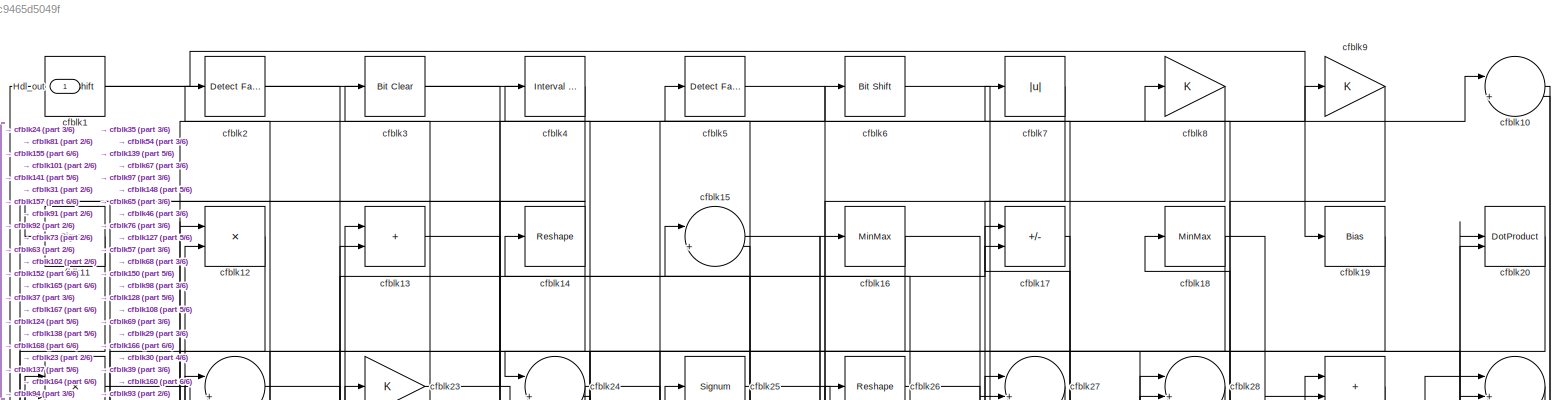
[diagram: root canvas - part 1/6, full width, top band]
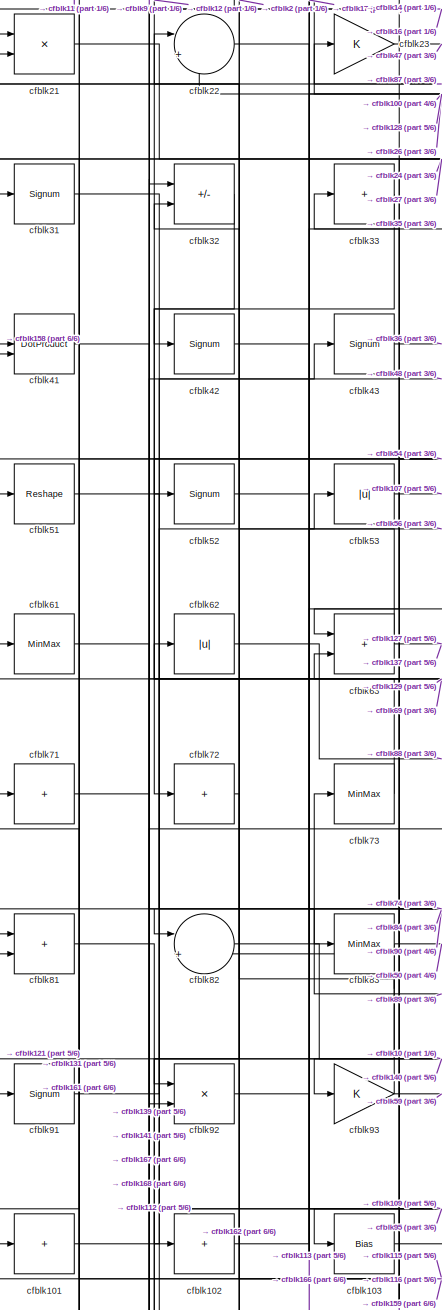
[diagram: root canvas - part 2/6, middle left region]
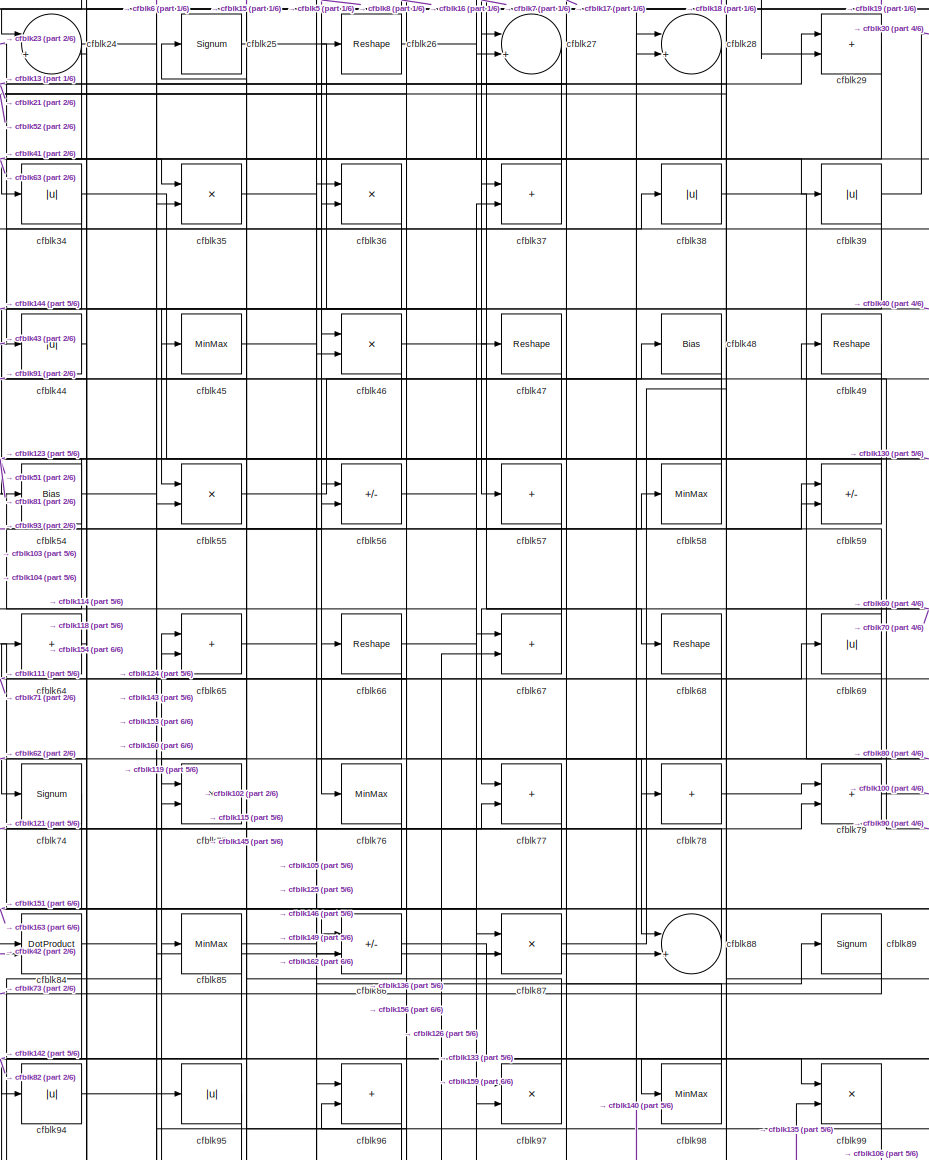
[diagram: root canvas - part 3/6, central region]
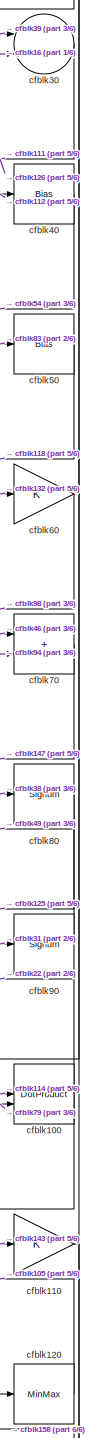
[diagram: root canvas - part 4/6, middle right region]
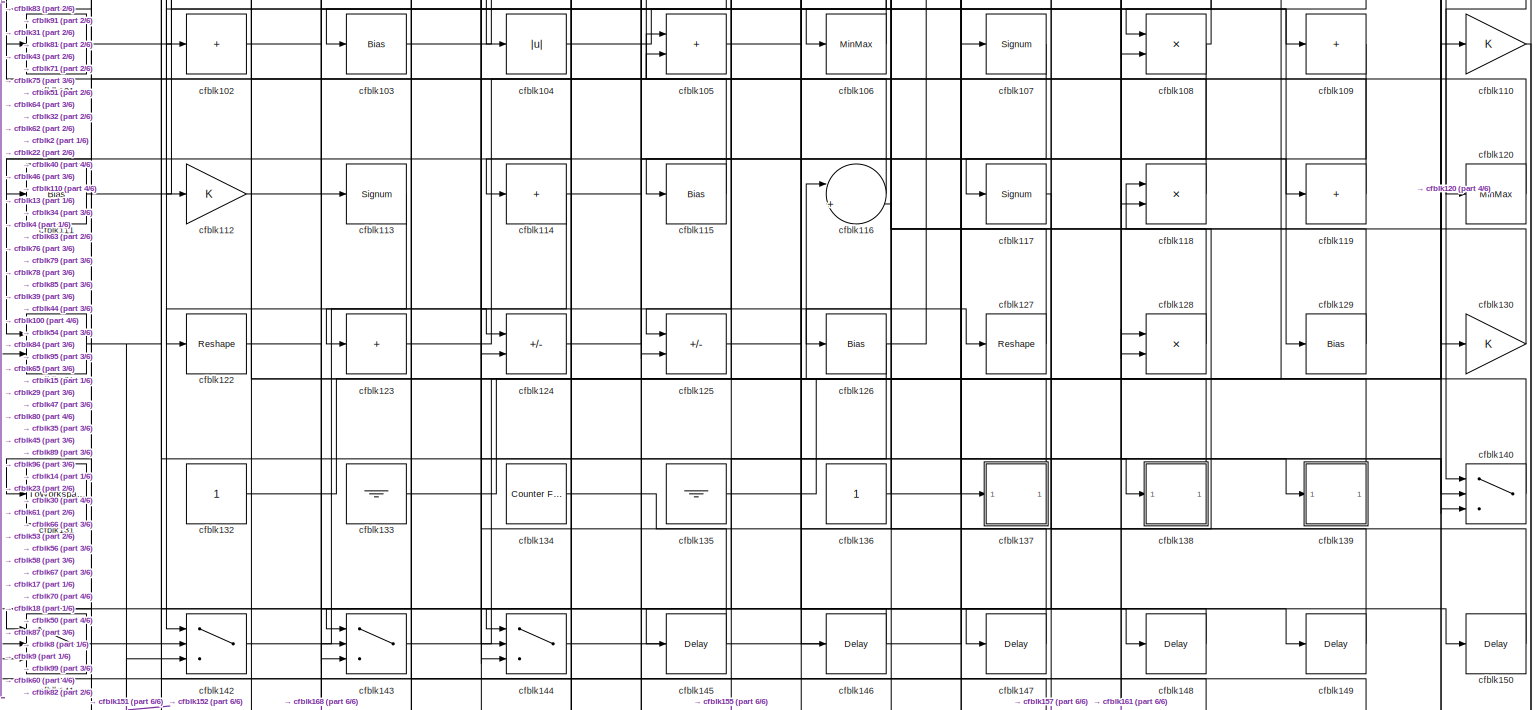
[diagram: root canvas - part 5/6, full width, bottom band]
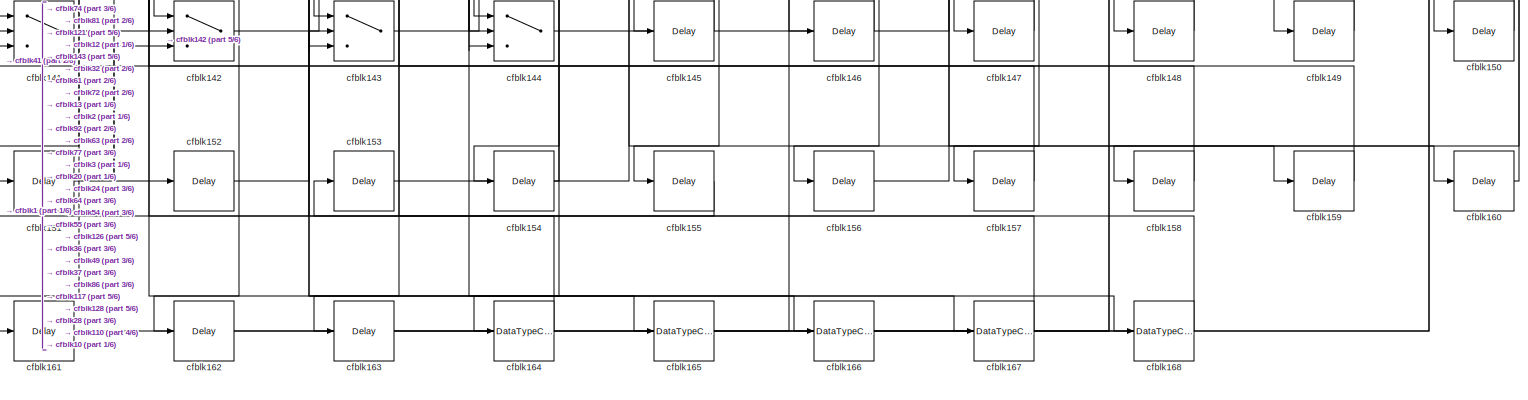
[diagram: root canvas - part 6/6, full width, bottom band]
MODEL slx_3c9465d5049f
KIND model
CONFIG AbsTol = auto
CONFIG EnableMultiTasking = off
CONFIG FixedStep = auto
CONFIG MaxStep = auto
CONFIG MinStep = auto
CONFIG RelTol = 1e-3
CONFIG SampleTimeConstraint = Unconstrained
CONFIG SolverName = VariableStepAuto
CONFIG StartTime = 0.0
CONFIG StopTime = 10.0
BLOCK [Outport] Hdl_out
  OutDataTypeStr = uint8
BLOCK [ArithShift] cfblk1
  BitShiftNumber = 8
  InputPortMap = u0
BLOCK [Sum] cfblk10
  Inputs = |++
  OutDataTypeStr = uint8
BLOCK [DotProduct] cfblk100
  OutDataTypeStr = uint8
BLOCK [Sum] cfblk101
  IconShape = rectangular
  Inputs = +
  OutDataTypeStr = uint8
BLOCK [Sum] cfblk102
  IconShape = rectangular
  Inputs = +
  OutDataTypeStr = uint8
BLOCK [Bias] cfblk103
  Bias = 0.0
  SaturateOnIntegerOverflow = off
BLOCK [Abs] cfblk104
  OutDataTypeStr = uint8
  SaturateOnIntegerOverflow = off
BLOCK [Sum] cfblk105
  IconShape = rectangular
  OutDataTypeStr = uint8
BLOCK [MinMax] cfblk106
  OutDataTypeStr = uint8
BLOCK [Signum] cfblk107
BLOCK [Product] cfblk108
  Inputs = */
  OutDataTypeStr = uint8
  RndMeth = Zero
  SaturateOnIntegerOverflow = on
BLOCK [Sum] cfblk109
  IconShape = rectangular
  Inputs = +
  OutDataTypeStr = uint8
BLOCK [Signum] cfblk11
BLOCK [Gain] cfblk110
  OutDataTypeStr = uint8
BLOCK [Bias] cfblk111
  Bias = 0.0
  SaturateOnIntegerOverflow = off
BLOCK [Gain] cfblk112
  OutDataTypeStr = uint8
BLOCK [Signum] cfblk113
BLOCK [Sum] cfblk114
  IconShape = rectangular
  Inputs = +
  OutDataTypeStr = uint8
BLOCK [Bias] cfblk115
  Bias = 0.0
  SaturateOnIntegerOverflow = off
BLOCK [Sum] cfblk116
  Inputs = |++
  OutDataTypeStr = uint8
BLOCK [Signum] cfblk117
BLOCK [Product] cfblk118
  Inputs = */
  OutDataTypeStr = uint8
  RndMeth = Zero
  SaturateOnIntegerOverflow = on
BLOCK [Sum] cfblk119
  IconShape = rectangular
  Inputs = +
  OutDataTypeStr = uint8
BLOCK [Product] cfblk12
  Inputs = */
  OutDataTypeStr = uint8
  RndMeth = Zero
  SaturateOnIntegerOverflow = on
BLOCK [MinMax] cfblk120
  OutDataTypeStr = uint8
BLOCK [Sum] cfblk121
  IconShape = rectangular
  OutDataTypeStr = uint8
BLOCK [Reshape] cfblk122
BLOCK [Sum] cfblk123
  IconShape = rectangular
  Inputs = +
  OutDataTypeStr = uint8
BLOCK [Sum] cfblk124
  IconShape = rectangular
  Inputs = +-
  OutDataTypeStr = uint8
BLOCK [Sum] cfblk125
  IconShape = rectangular
  Inputs = +-
  OutDataTypeStr = uint8
BLOCK [Bias] cfblk126
  Bias = 0.0
  SaturateOnIntegerOverflow = off
BLOCK [Reshape] cfblk127
BLOCK [Product] cfblk128
  Inputs = */
  OutDataTypeStr = uint8
  RndMeth = Zero
  SaturateOnIntegerOverflow = on
BLOCK [Bias] cfblk129
  Bias = 0.0
  SaturateOnIntegerOverflow = off
BLOCK [Sum] cfblk13
  IconShape = rectangular
  OutDataTypeStr = uint8
BLOCK [Gain] cfblk130
  OutDataTypeStr = uint8
BLOCK [ToWorkspace] cfblk131
  MaxDataPoints = inf
  SampleTime = -1
  SaveFormat = Timeseries
  VariableName = simout
BLOCK [Constant] cfblk132
  OutDataTypeStr = uint8
  SampleTime = -1
BLOCK [Ground] cfblk133
BLOCK [Reference] cfblk134  REF=hdlsllib/Sources/Counter
Free-Running
  SourceBlock = hdlsllib/Sources/Counter\nFree-Running
  SourceType = Counter Free-Running
BLOCK [Ground] cfblk135
BLOCK [Constant] cfblk136
  OutDataTypeStr = uint8
  SampleTime = -1
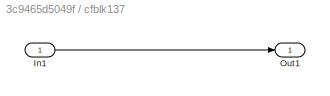
BLOCK [SubSystem] cfblk137
  LibrarySourceBlock = hdlsllib/Ports &\nSubsystems/Subsystem
BLOCK [Inport] cfblk137/In1
BLOCK [Outport] cfblk137/Out1
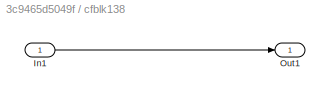
BLOCK [SubSystem] cfblk138
  LibrarySourceBlock = hdlsllib/Ports &\nSubsystems/Subsystem
BLOCK [Inport] cfblk138/In1
BLOCK [Outport] cfblk138/Out1
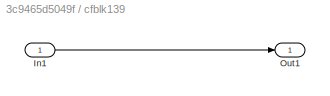
BLOCK [SubSystem] cfblk139
  LibrarySourceBlock = hdlsllib/Ports &\nSubsystems/Subsystem
BLOCK [Inport] cfblk139/In1
BLOCK [Outport] cfblk139/Out1
BLOCK [Reshape] cfblk14
BLOCK [Switch] cfblk140
  InputSameDT = off
  OutDataTypeStr = uint8
  SaturateOnIntegerOverflow = off
BLOCK [Switch] cfblk141
  InputSameDT = off
  OutDataTypeStr = uint8
  SaturateOnIntegerOverflow = off
BLOCK [Switch] cfblk142
  InputSameDT = off
  OutDataTypeStr = uint8
  SaturateOnIntegerOverflow = off
BLOCK [Switch] cfblk143
  InputSameDT = off
  OutDataTypeStr = uint8
  SaturateOnIntegerOverflow = off
BLOCK [Switch] cfblk144
  InputSameDT = off
  OutDataTypeStr = uint8
  SaturateOnIntegerOverflow = off
BLOCK [Delay] cfblk145
  InputPortMap = u0
  SampleTime = 1
BLOCK [Delay] cfblk146
  InputPortMap = u0
  SampleTime = 1
BLOCK [Delay] cfblk147
  InputPortMap = u0
  SampleTime = 1
BLOCK [Delay] cfblk148
  InputPortMap = u0
  SampleTime = 1
BLOCK [Delay] cfblk149
  InputPortMap = u0
  SampleTime = 1
BLOCK [Sum] cfblk15
  Inputs = |++
  OutDataTypeStr = uint8
BLOCK [Delay] cfblk150
  InputPortMap = u0
  SampleTime = 1
BLOCK [Delay] cfblk151
  InputPortMap = u0
  SampleTime = 1
BLOCK [Delay] cfblk152
  InputPortMap = u0
  SampleTime = 1
BLOCK [Delay] cfblk153
  InputPortMap = u0
  SampleTime = 1
BLOCK [Delay] cfblk154
  InputPortMap = u0
  SampleTime = 1
BLOCK [Delay] cfblk155
  InputPortMap = u0
  SampleTime = 1
BLOCK [Delay] cfblk156
  InputPortMap = u0
  SampleTime = 1
BLOCK [Delay] cfblk157
  InputPortMap = u0
  SampleTime = 1
BLOCK [Delay] cfblk158
  InputPortMap = u0
  SampleTime = 1
BLOCK [Delay] cfblk159
  InputPortMap = u0
  SampleTime = 1
BLOCK [MinMax] cfblk16
  OutDataTypeStr = uint8
BLOCK [Delay] cfblk160
  InputPortMap = u0
  SampleTime = 1
BLOCK [Delay] cfblk161
  InputPortMap = u0
  SampleTime = 1
BLOCK [Delay] cfblk162
  InputPortMap = u0
  SampleTime = 1
BLOCK [Delay] cfblk163
  InputPortMap = u0
  SampleTime = 1
BLOCK [DataTypeConversion] cfblk164
  OutDataTypeStr = uint8
  RndMeth = Floor
  SaturateOnIntegerOverflow = off
BLOCK [DataTypeConversion] cfblk165
  OutDataTypeStr = uint8
  RndMeth = Floor
  SaturateOnIntegerOverflow = off
BLOCK [DataTypeConversion] cfblk166
  OutDataTypeStr = uint8
  RndMeth = Floor
  SaturateOnIntegerOverflow = off
BLOCK [DataTypeConversion] cfblk167
  OutDataTypeStr = uint8
  RndMeth = Floor
  SaturateOnIntegerOverflow = off
BLOCK [DataTypeConversion] cfblk168
  OutDataTypeStr = uint8
  RndMeth = Floor
  SaturateOnIntegerOverflow = off
BLOCK [Sum] cfblk17
  IconShape = rectangular
  Inputs = +-
  OutDataTypeStr = uint8
BLOCK [MinMax] cfblk18
  OutDataTypeStr = uint8
BLOCK [Bias] cfblk19
  Bias = 0.0
  SaturateOnIntegerOverflow = off
BLOCK [Reference] cfblk2  REF=hdlsllib/Logic and Bit
Operations/Detect Fall
Negative
  SourceBlock = hdlsllib/Logic and Bit\nOperations/Detect Fall\nNegative
  SourceType = Detect Fall Negative
BLOCK [DotProduct] cfblk20
  OutDataTypeStr = uint8
BLOCK [Product] cfblk21
  Inputs = */
  OutDataTypeStr = uint8
  RndMeth = Zero
  SaturateOnIntegerOverflow = on
BLOCK [Sum] cfblk22
  Inputs = |++
  OutDataTypeStr = uint8
BLOCK [Gain] cfblk23
  OutDataTypeStr = uint8
BLOCK [Sum] cfblk24
  Inputs = |++
  OutDataTypeStr = uint8
BLOCK [Signum] cfblk25
BLOCK [Reshape] cfblk26
BLOCK [Sum] cfblk27
  Inputs = |++
  OutDataTypeStr = uint8
BLOCK [Sum] cfblk28
  Inputs = |++
  OutDataTypeStr = uint8
BLOCK [Sum] cfblk29
  IconShape = rectangular
  OutDataTypeStr = uint8
BLOCK [Reference] cfblk3  REF=simulink/Logic and Bit
Operations/Bit Clear
  LibrarySourceBlock = hdlsllib/Logic and Bit\nOperations/Bit Clear
  SourceBlock = simulink/Logic and Bit\nOperations/Bit Clear
  SourceType = Bit Clear
BLOCK [Sum] cfblk30
  Inputs = |++
  OutDataTypeStr = uint8
BLOCK [Signum] cfblk31
BLOCK [Sum] cfblk32
  IconShape = rectangular
  Inputs = +-
  OutDataTypeStr = uint8
BLOCK [Sum] cfblk33
  IconShape = rectangular
  Inputs = +
  OutDataTypeStr = uint8
BLOCK [Abs] cfblk34
  OutDataTypeStr = uint8
  SaturateOnIntegerOverflow = off
BLOCK [Product] cfblk35
  Inputs = */
  OutDataTypeStr = uint8
  RndMeth = Zero
  SaturateOnIntegerOverflow = on
BLOCK [Product] cfblk36
  Inputs = */
  OutDataTypeStr = uint8
  RndMeth = Zero
  SaturateOnIntegerOverflow = on
BLOCK [Sum] cfblk37
  IconShape = rectangular
  OutDataTypeStr = uint8
BLOCK [Abs] cfblk38
  OutDataTypeStr = uint8
  SaturateOnIntegerOverflow = off
BLOCK [Abs] cfblk39
  OutDataTypeStr = uint8
  SaturateOnIntegerOverflow = off
BLOCK [Reference] cfblk4  REF=hdlsllib/Logic and Bit
Operations/Interval Test
  SourceBlock = hdlsllib/Logic and Bit\nOperations/Interval Test
  SourceType = Interval Test
BLOCK [Bias] cfblk40
  Bias = 0.0
  SaturateOnIntegerOverflow = off
BLOCK [DotProduct] cfblk41
  OutDataTypeStr = uint8
BLOCK [Signum] cfblk42
BLOCK [Signum] cfblk43
BLOCK [Abs] cfblk44
  OutDataTypeStr = uint8
  SaturateOnIntegerOverflow = off
BLOCK [MinMax] cfblk45
  OutDataTypeStr = uint8
BLOCK [Product] cfblk46
  Inputs = */
  OutDataTypeStr = uint8
  RndMeth = Zero
  SaturateOnIntegerOverflow = on
BLOCK [Reshape] cfblk47
BLOCK [Bias] cfblk48
  Bias = 0.0
  SaturateOnIntegerOverflow = off
BLOCK [Reshape] cfblk49
BLOCK [Reference] cfblk5  REF=hdlsllib/Logic and Bit
Operations/Detect Fall
Negative
  SourceBlock = hdlsllib/Logic and Bit\nOperations/Detect Fall\nNegative
  SourceType = Detect Fall Negative
BLOCK [Bias] cfblk50
  Bias = 0.0
  SaturateOnIntegerOverflow = off
BLOCK [Reshape] cfblk51
BLOCK [Signum] cfblk52
BLOCK [Abs] cfblk53
  OutDataTypeStr = uint8
  SaturateOnIntegerOverflow = off
BLOCK [Bias] cfblk54
  Bias = 0.0
  SaturateOnIntegerOverflow = off
BLOCK [Product] cfblk55
  Inputs = */
  OutDataTypeStr = uint8
  RndMeth = Zero
  SaturateOnIntegerOverflow = on
BLOCK [Sum] cfblk56
  IconShape = rectangular
  Inputs = +-
  OutDataTypeStr = uint8
BLOCK [Sum] cfblk57
  IconShape = rectangular
  Inputs = +
  OutDataTypeStr = uint8
BLOCK [MinMax] cfblk58
  OutDataTypeStr = uint8
BLOCK [Sum] cfblk59
  IconShape = rectangular
  Inputs = +-
  OutDataTypeStr = uint8
BLOCK [Reference] cfblk6  REF=hdlsllib/Logic and Bit
Operations/Bit Shift
  SourceBlock = hdlsllib/Logic and Bit\nOperations/Bit Shift
  SourceType = Bit Shift
BLOCK [Gain] cfblk60
  OutDataTypeStr = uint8
BLOCK [MinMax] cfblk61
  OutDataTypeStr = uint8
BLOCK [Abs] cfblk62
  OutDataTypeStr = uint8
  SaturateOnIntegerOverflow = off
BLOCK [Sum] cfblk63
  IconShape = rectangular
  OutDataTypeStr = uint8
BLOCK [Sum] cfblk64
  IconShape = rectangular
  Inputs = +
  OutDataTypeStr = uint8
BLOCK [Sum] cfblk65
  IconShape = rectangular
  OutDataTypeStr = uint8
BLOCK [Reshape] cfblk66
BLOCK [Sum] cfblk67
  IconShape = rectangular
  OutDataTypeStr = uint8
BLOCK [Reshape] cfblk68
BLOCK [Abs] cfblk69
  OutDataTypeStr = uint8
  SaturateOnIntegerOverflow = off
BLOCK [Abs] cfblk7
  OutDataTypeStr = uint8
  SaturateOnIntegerOverflow = off
BLOCK [Sum] cfblk70
  IconShape = rectangular
  OutDataTypeStr = uint8
BLOCK [Sum] cfblk71
  IconShape = rectangular
  Inputs = +
  OutDataTypeStr = uint8
BLOCK [Sum] cfblk72
  IconShape = rectangular
  Inputs = +
  OutDataTypeStr = uint8
BLOCK [MinMax] cfblk73
  OutDataTypeStr = uint8
BLOCK [Signum] cfblk74
BLOCK [Product] cfblk75
  Inputs = */
  OutDataTypeStr = uint8
  RndMeth = Zero
  SaturateOnIntegerOverflow = on
BLOCK [MinMax] cfblk76
  OutDataTypeStr = uint8
BLOCK [Sum] cfblk77
  IconShape = rectangular
  OutDataTypeStr = uint8
BLOCK [Sum] cfblk78
  IconShape = rectangular
  Inputs = +
  OutDataTypeStr = uint8
BLOCK [Sum] cfblk79
  IconShape = rectangular
  OutDataTypeStr = uint8
BLOCK [Gain] cfblk8
  OutDataTypeStr = uint8
BLOCK [Signum] cfblk80
BLOCK [Sum] cfblk81
  IconShape = rectangular
  OutDataTypeStr = uint8
BLOCK [Sum] cfblk82
  Inputs = |++
  OutDataTypeStr = uint8
BLOCK [MinMax] cfblk83
  OutDataTypeStr = uint8
BLOCK [DotProduct] cfblk84
  OutDataTypeStr = uint8
BLOCK [MinMax] cfblk85
  OutDataTypeStr = uint8
BLOCK [Sum] cfblk86
  IconShape = rectangular
  Inputs = +-
  OutDataTypeStr = uint8
BLOCK [Product] cfblk87
  Inputs = */
  OutDataTypeStr = uint8
  RndMeth = Zero
  SaturateOnIntegerOverflow = on
BLOCK [Sum] cfblk88
  Inputs = |++
  OutDataTypeStr = uint8
BLOCK [Signum] cfblk89
BLOCK [Gain] cfblk9
  OutDataTypeStr = uint8
BLOCK [Signum] cfblk90
BLOCK [Signum] cfblk91
BLOCK [Product] cfblk92
  Inputs = */
  OutDataTypeStr = uint8
  RndMeth = Zero
  SaturateOnIntegerOverflow = on
BLOCK [Gain] cfblk93
  OutDataTypeStr = uint8
BLOCK [Abs] cfblk94
  OutDataTypeStr = uint8
  SaturateOnIntegerOverflow = off
BLOCK [Abs] cfblk95
  OutDataTypeStr = uint8
  SaturateOnIntegerOverflow = off
BLOCK [Sum] cfblk96
  IconShape = rectangular
  OutDataTypeStr = uint8
BLOCK [Product] cfblk97
  Inputs = */
  OutDataTypeStr = uint8
  RndMeth = Zero
  SaturateOnIntegerOverflow = on
BLOCK [MinMax] cfblk98
  OutDataTypeStr = uint8
BLOCK [Product] cfblk99
  Inputs = */
  OutDataTypeStr = uint8
  RndMeth = Zero
  SaturateOnIntegerOverflow = on
NET cfblk100:1 -> cfblk120:1, cfblk22:2
LINE cfblk101:1 -> cfblk53:1
LINE cfblk102:1 -> cfblk17:1
NET cfblk103:1 -> cfblk78:1, cfblk85:1
LINE cfblk104:1 -> cfblk129:1
LINE cfblk105:1 -> cfblk89:1
LINE cfblk106:1 -> cfblk65:2
LINE cfblk107:1 -> cfblk117:1
NET cfblk108:1 -> cfblk125:2, cfblk8:1
LINE cfblk109:1 -> cfblk121:1
LINE cfblk10:1 -> cfblk93:1
LINE cfblk110:1 -> cfblk158:1
LINE cfblk111:1 -> cfblk64:1
LINE cfblk112:1 -> cfblk40:1
LINE cfblk113:1 -> cfblk122:1
NET cfblk114:1 -> cfblk100:1, cfblk143:1
LINE cfblk115:1 -> cfblk62:1
LINE cfblk116:1 -> cfblk71:1
LINE cfblk117:1 -> cfblk157:1
NET cfblk118:1 -> cfblk44:1, cfblk91:1
LINE cfblk119:1 -> cfblk65:1
LINE cfblk11:1 -> cfblk81:2
LINE cfblk120:1 -> cfblk105:2
NET cfblk121:1 -> cfblk152:1, cfblk75:2
LINE cfblk122:1 -> cfblk150:1
LINE cfblk123:1 -> cfblk105:1
LINE cfblk124:1 -> cfblk95:1
LINE cfblk125:1 -> cfblk46:2
NET cfblk126:1 -> cfblk155:1, cfblk67:2
LINE cfblk127:1 -> cfblk14:1
LINE cfblk128:1 -> cfblk23:1
LINE cfblk129:1 -> cfblk61:1
NET cfblk12:1 -> cfblk101:1, cfblk31:1
LINE cfblk130:1 -> cfblk96:2
LINE cfblk132:1 -> cfblk60:1
LINE cfblk133:1 -> cfblk67:1
LINE cfblk134:1 -> cfblk118:1
LINE cfblk135:1 -> cfblk99:2
NET cfblk136:1 -> cfblk58:1, cfblk66:1
LINE cfblk137/In1:1 -> cfblk137/Out1:1
NET cfblk137:1 -> cfblk32:2, cfblk4:1
LINE cfblk138/In1:1 -> cfblk138/Out1:1
LINE cfblk138:1 -> cfblk116:1
LINE cfblk139/In1:1 -> cfblk139/Out1:1
LINE cfblk139:1 -> cfblk15:2
LINE cfblk13:1 -> cfblk138:1
LINE cfblk140:1 -> cfblk22:1
LINE cfblk141:1 -> cfblk43:1
LINE cfblk142:1 -> cfblk124:1
NET cfblk143:1 -> cfblk110:1, cfblk79:2
LINE cfblk144:1 -> cfblk87:1
LINE cfblk145:1 -> cfblk84:1
LINE cfblk146:1 -> cfblk141:2
LINE cfblk147:1 -> cfblk116:2
LINE cfblk148:1 -> cfblk142:2
LINE cfblk149:1 -> cfblk96:1
NET cfblk14:1 -> cfblk11:1, cfblk92:2
LINE cfblk150:1 -> cfblk17:2
LINE cfblk151:1 -> cfblk142:3
LINE cfblk152:1 -> cfblk13:2
LINE cfblk153:1 -> cfblk55:2
LINE cfblk154:1 -> cfblk24:2
LINE cfblk155:1 -> cfblk1:1
LINE cfblk156:1 -> cfblk37:2
LINE cfblk157:1 -> cfblk12:1
LINE cfblk158:1 -> cfblk41:1
LINE cfblk159:1 -> cfblk63:2
LINE cfblk15:1 -> cfblk148:1
LINE cfblk160:1 -> cfblk10:2
LINE cfblk161:1 -> cfblk128:1
LINE cfblk162:1 -> cfblk36:1
LINE cfblk163:1 -> cfblk28:1
LINE cfblk164:1 -> cfblk153:1
LINE cfblk165:1 -> cfblk20:1
LINE cfblk166:1 -> cfblk20:2
LINE cfblk167:1 -> cfblk3:1
NET cfblk168:1 -> cfblk143:2, cfblk32:1
NET cfblk16:1 -> cfblk30:2, cfblk35:2, cfblk39:1, cfblk92:1
LINE cfblk17:1 -> cfblk37:1
NET cfblk18:1 -> cfblk128:2, cfblk29:2, cfblk94:1
LINE cfblk19:1 -> cfblk24:1
LINE cfblk1:1 -> cfblk19:1
LINE cfblk20:1 -> cfblk164:1
LINE cfblk21:1 -> cfblk35:1
LINE cfblk22:1 -> cfblk113:1
NET cfblk23:1 -> cfblk10:1, cfblk47:1
NET cfblk24:1 -> cfblk63:1, cfblk88:2
LINE cfblk25:1 -> cfblk97:1
LINE cfblk26:1 -> cfblk27:2
NET cfblk27:1 -> cfblk41:2, cfblk74:1
LINE cfblk28:1 -> cfblk34:1
NET cfblk29:1 -> cfblk145:1, cfblk75:1
NET cfblk2:1 -> cfblk108:2, cfblk165:1
NET cfblk30:1 -> cfblk111:1, cfblk126:1
NET cfblk31:1 -> cfblk131:1, cfblk90:1
LINE cfblk32:1 -> cfblk42:1
LINE cfblk33:1 -> cfblk72:1
NET cfblk34:1 -> cfblk130:1, cfblk144:3
LINE cfblk35:1 -> cfblk149:1
LINE cfblk36:1 -> cfblk55:1
LINE cfblk37:1 -> cfblk13:1
LINE cfblk38:1 -> cfblk80:1
NET cfblk39:1 -> cfblk114:1, cfblk30:1
LINE cfblk3:1 -> cfblk168:1
LINE cfblk40:1 -> cfblk54:1
LINE cfblk41:1 -> cfblk83:1
LINE cfblk42:1 -> cfblk84:2
LINE cfblk43:1 -> cfblk36:2
LINE cfblk44:1 -> cfblk144:1
LINE cfblk45:1 -> cfblk146:1
NET cfblk46:1 -> cfblk123:1, cfblk70:1
LINE cfblk47:1 -> cfblk115:1
LINE cfblk48:1 -> cfblk81:1
LINE cfblk49:1 -> cfblk156:1
NET cfblk4:1 -> Hdl_out:1, cfblk124:2, cfblk141:1, cfblk141:3
LINE cfblk50:1 -> cfblk118:2
LINE cfblk51:1 -> cfblk109:1
LINE cfblk52:1 -> cfblk26:1
LINE cfblk53:1 -> cfblk107:1
NET cfblk54:1 -> cfblk143:3, cfblk160:1, cfblk51:1, cfblk56:2, cfblk6:1
NET cfblk55:1 -> cfblk28:2, cfblk87:2
LINE cfblk56:1 -> cfblk140:2
LINE cfblk57:1 -> cfblk77:1
LINE cfblk58:1 -> cfblk27:1
LINE cfblk59:1 -> cfblk52:1
LINE cfblk5:1 -> cfblk76:1
LINE cfblk60:1 -> cfblk98:1
LINE cfblk61:1 -> cfblk167:1
LINE cfblk62:1 -> cfblk88:1
NET cfblk63:1 -> cfblk127:1, cfblk137:1, cfblk2:1
LINE cfblk64:1 -> cfblk154:1
LINE cfblk65:1 -> cfblk16:1
NET cfblk66:1 -> cfblk59:1, cfblk86:2
LINE cfblk67:1 -> cfblk5:1
LINE cfblk68:1 -> cfblk86:1
NET cfblk69:1 -> cfblk18:1, cfblk97:2
LINE cfblk6:1 -> cfblk68:1
LINE cfblk70:1 -> cfblk147:1
NET cfblk71:1 -> cfblk139:1, cfblk69:1
LINE cfblk72:1 -> cfblk162:1
LINE cfblk73:1 -> cfblk12:2
NET cfblk74:1 -> cfblk151:1, cfblk82:1
LINE cfblk75:1 -> cfblk45:1
LINE cfblk76:1 -> cfblk144:2
LINE cfblk77:1 -> cfblk163:1
LINE cfblk78:1 -> cfblk79:1
LINE cfblk79:1 -> cfblk100:2
LINE cfblk7:1 -> cfblk57:1
LINE cfblk80:1 -> cfblk125:1
NET cfblk81:1 -> cfblk112:1, cfblk161:1
NET cfblk82:1 -> cfblk140:1, cfblk56:1
NET cfblk83:1 -> cfblk121:2, cfblk33:1, cfblk50:1
NET cfblk84:1 -> cfblk119:1, cfblk142:1, cfblk77:2
NET cfblk85:1 -> cfblk104:1, cfblk38:1
NET cfblk86:1 -> cfblk159:1, cfblk99:1
NET cfblk87:1 -> cfblk140:3, cfblk21:1
LINE cfblk88:1 -> cfblk25:1
LINE cfblk89:1 -> cfblk73:1
LINE cfblk8:1 -> cfblk46:1
LINE cfblk90:1 -> cfblk49:1
NET cfblk91:1 -> cfblk48:1, cfblk9:1
LINE cfblk92:1 -> cfblk166:1
NET cfblk93:1 -> cfblk21:2, cfblk59:2, cfblk82:2
NET cfblk94:1 -> cfblk29:1, cfblk70:2
LINE cfblk95:1 -> cfblk102:1
LINE cfblk96:1 -> cfblk103:1
LINE cfblk97:1 -> cfblk15:1
LINE cfblk98:1 -> cfblk7:1
LINE cfblk99:1 -> cfblk106:1
LINE cfblk9:1 -> cfblk108:1
note: NET lines group one-source signal fan-out (src -> all destinations, sorted); 1:1 wires keep LINE
